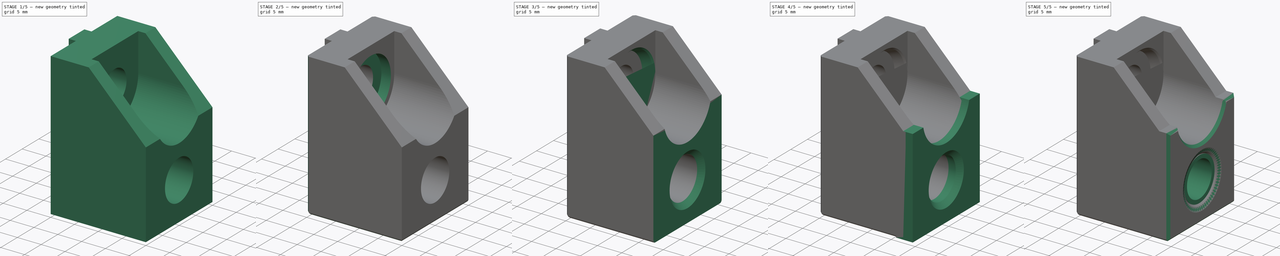
[diagram: build sequence overview — one tinted view per stage of 5, left to right]
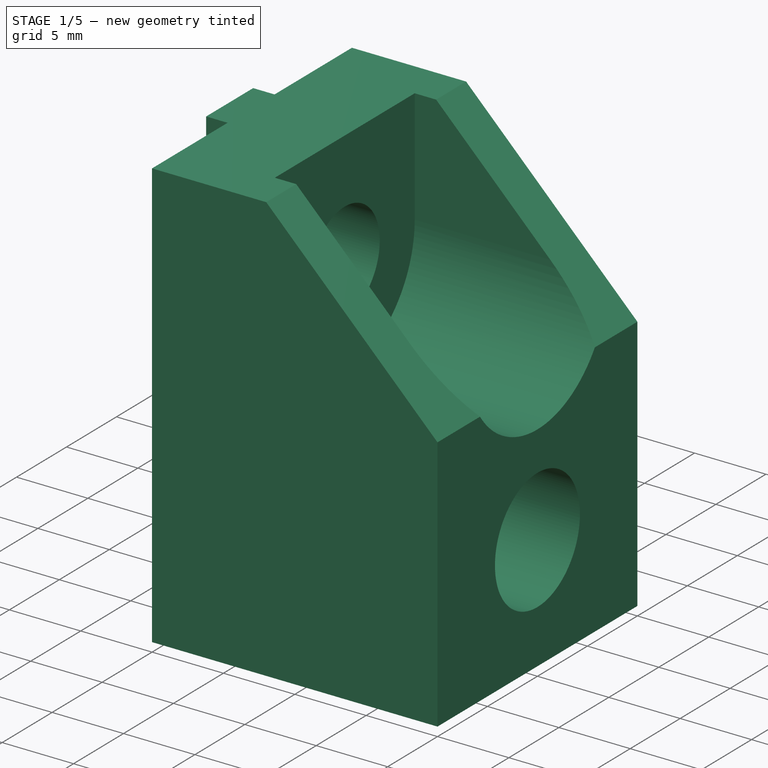
[diagram: stage 1 of 5 — iso view after this stage's code; geometry added in this stage tinted green]
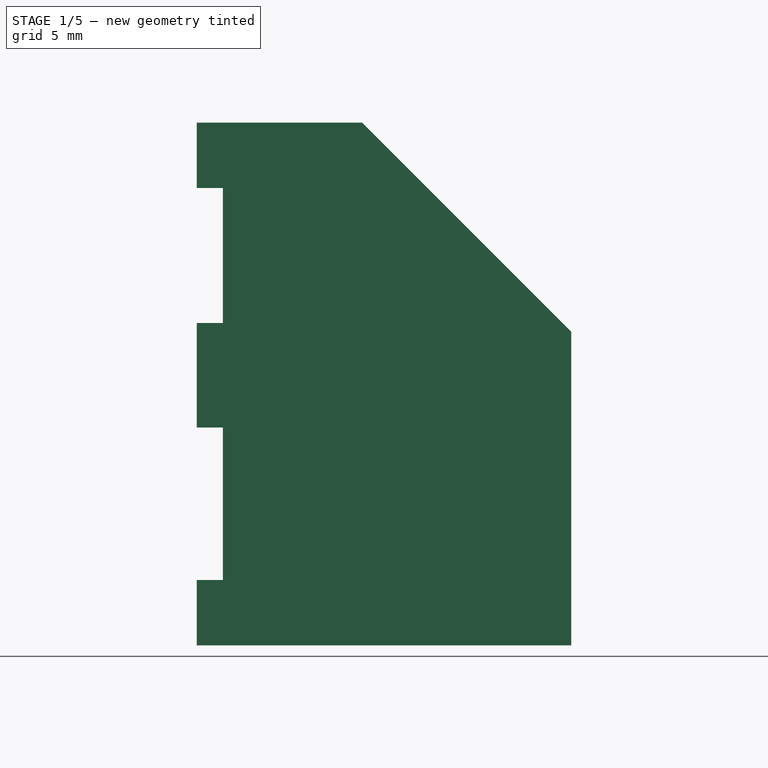
[diagram: stage 1 of 5 — front view after this stage's code; geometry added in this stage tinted green]
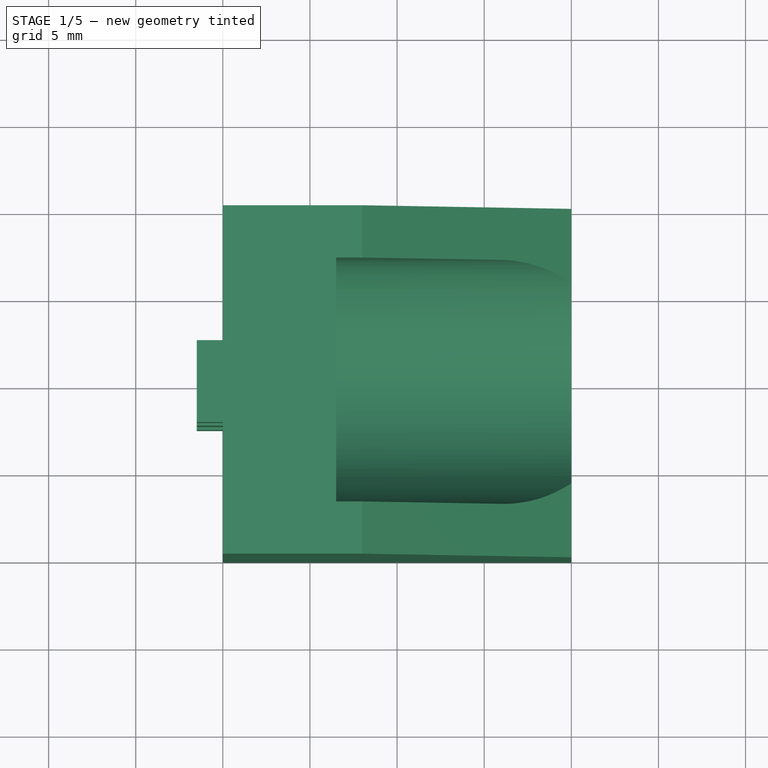
[diagram: stage 1 of 5 — top view after this stage's code; geometry added in this stage tinted green]
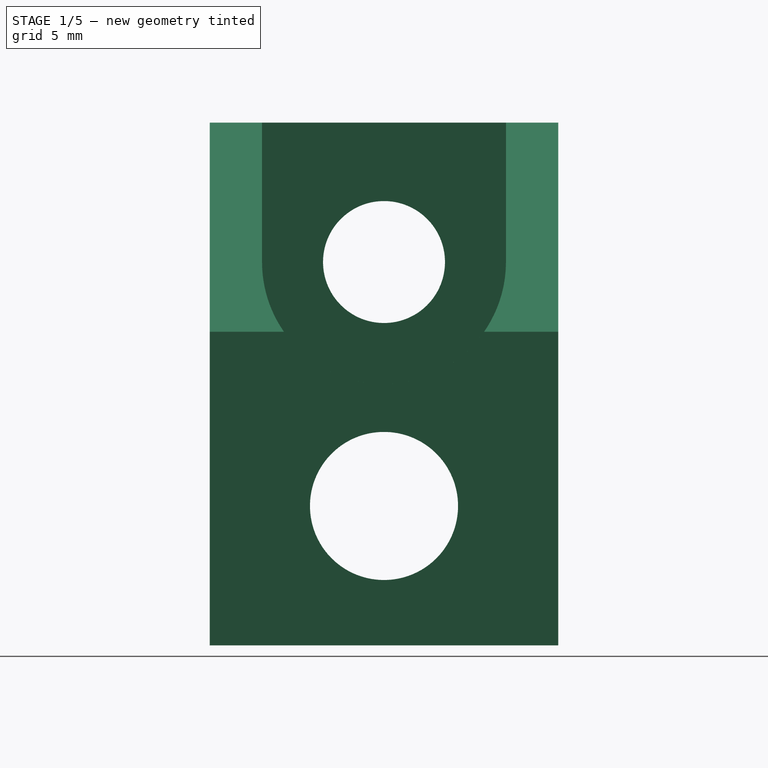
[diagram: stage 1 of 5 — right view after this stage's code; geometry added in this stage tinted green]
FCSTD DOCUMENT  (FreeCAD 0.16R5480 (Git))
Label: bed_mount_chassis_v3.3_A
License: All rights reserved
LicenseURL: http://en.wikipedia.org/wiki/All_rights_reserved
objects: Sketcher::SketchObject×12, PartDesign::Chamfer×8, PartDesign::Pocket×7, PartDesign::Pad×5, PartDesign::Fillet×4
note: 48 computed .brp shape members not serialized (recipe doc carries the construction recipe); baked Part::Feature solids carry a one-line shape summary decoded from their .brp

FEATURE [Sketcher::SketchObject] Sketch
  sketch-geometry (4):
    g0: LineSegment StartX=0 StartY=0 StartZ=0 EndX=20 EndY=0 EndZ=0
    g1: LineSegment StartX=20 StartY=0 StartZ=0 EndX=20 EndY=20 EndZ=0
    g2: LineSegment StartX=20 StartY=20 StartZ=0 EndX=0 EndY=20 EndZ=0
    g3: LineSegment StartX=0 StartY=20 StartZ=0 EndX=0 EndY=0 EndZ=0
  constraints (11):
    c: Coincident(g0,g1)
    c: Coincident(g1,g2)
    c: Coincident(g2,g3)
    c: Coincident(g3,g0)
    c: Horizontal(g0)
    c: Horizontal(g2)
    c: Vertical(g1)
    c: Vertical(g3)
    c: Coincident(g0,g-1)
    c: Equal(g3,g2)
    c: DistanceX(g2) = -20
FEATURE [PartDesign::Pad] Pad
  Length = 30
  Length2 = 100
  Sketch = -> Sketch
  Type = 0
FEATURE [Sketcher::SketchObject] Sketch001
  ExternalGeometry = -> [Pad]
  Placement = pos=(0,0,0) rot=(1,0,0;1.5708rad)
  Support = -> Pad [Face1]
  sketch-geometry (3):
    g0: LineSegment StartX=8 StartY=30 StartZ=0 EndX=20 EndY=18 EndZ=0
    g1: LineSegment StartX=20 StartY=18 StartZ=0 EndX=20 EndY=30 EndZ=0
    g2: LineSegment StartX=20 StartY=30 StartZ=0 EndX=8 EndY=30 EndZ=0
  constraints (8):
    c: PointOnObject(g0,g-3)
    c: PointOnObject(g0,g-4)
    c: Coincident(g0,g1)
    c: Coincident(g1,g-4)
    c: Coincident(g1,g2)
    c: Coincident(g2,g0)
    c: DistanceX(g0,g-3) = -8
    c: DistanceY(g0,g-4) = -18
FEATURE [PartDesign::Pocket] Pocket
  Length = 5
  Sketch = -> Sketch001
  Type = 1
FEATURE [Sketcher::SketchObject] Sketch002
  ExternalGeometry = -> [Pocket]
  Placement = pos=(20,0,0) rot=(0.57735,0.57735,0.57735;2.0944rad)
  Support = -> Pocket [Face3]
  sketch-geometry (4):
    g0: ArcOfCircle CenterX=10 CenterY=30 CenterZ=0 NormalX=0 NormalY=0 NormalZ=1 Radius=7 StartAngle=0 EndAngle=3.14159
    g1: ArcOfCircle CenterX=10 CenterY=22 CenterZ=0 NormalX=0 NormalY=0 NormalZ=1 Radius=7 StartAngle=3.14159 EndAngle=6.28319
    g2: LineSegment StartX=3 StartY=30 StartZ=0 EndX=3 EndY=22 EndZ=0
    g3: LineSegment StartX=17 StartY=30 StartZ=0 EndX=17 EndY=22 EndZ=0
  constraints (10):
    c: Tangent(g0,g3) = 1.5708
    c: Tangent(g0,g2) = -1.5708
    c: Tangent(g2,g1) = -1.5708
    c: Tangent(g3,g1) = 1.5708
    c: Vertical(g2)
    c: Equal(g0,g1)
    c: PointOnObject(g0,g-3)
    c: DistanceX(g0,g-3) = 3
    c: DistanceX(g0,g-3) = -3
    c: DistanceY(g1,g0) = 8
FEATURE [PartDesign::Pocket] Pocket001
  Length = 13.5
  Sketch = -> Sketch002
  Type = 0
FEATURE [Sketcher::SketchObject] Sketch003
  ExternalGeometry = -> [Pocket001]
  Placement = pos=(20,0,0) rot=(0.57735,0.57735,0.57735;2.0944rad)
  Support = -> Pocket001 [Face3]
  sketch-geometry (6):
    g0: Circle CenterX=10 CenterY=22 CenterZ=0 NormalX=0 NormalY=0 NormalZ=1 Radius=3.5
    g1: Circle CenterX=10 CenterY=8 CenterZ=0 NormalX=0 NormalY=0 NormalZ=1 Radius=4.25
    g2: LineSegment [constr] StartX=0 StartY=0 StartZ=0 EndX=10 EndY=8 EndZ=0
    g3: LineSegment [constr] StartX=10 StartY=8 StartZ=0 EndX=20 EndY=0 EndZ=0
    g4: LineSegment [constr] StartX=3 StartY=30 StartZ=0 EndX=10 EndY=22 EndZ=0
    g5: LineSegment [constr] StartX=10 StartY=22 StartZ=0 EndX=17 EndY=30 EndZ=0
  constraints (14):
    c: Coincident(g-1,g2)
    c: Coincident(g2,g1)
    c: Coincident(g2,g3)
    c: Coincident(g3,g-4)
    c: Coincident(g-3,g4)
    c: Coincident(g4,g0)
    c: Coincident(g4,g5)
    c: Coincident(g5,g-3)
    c: Equal(g5,g4)
    c: Equal(g3,g2)
    c: Radius(g1) = 4.25
    c: Radius(g0) = 3.5
    c: Coincident(g-5,g0)
    c: DistanceY(g1) = 8
FEATURE [PartDesign::Pocket] Pocket002
  Length = 5
  Sketch = -> Sketch003
  Type = 1
FEATURE [Sketcher::SketchObject] Sketch004
  ExternalGeometry = -> [Pocket002]
  Placement = pos=(0,0,0) rot=(0.57735,-0.57735,-0.57735;2.0944rad)
  Support = -> Pocket002 [Face6]
  sketch-geometry (12):
    g0: LineSegment StartX=-12.26 StartY=30 StartZ=0 EndX=-7.56 EndY=30 EndZ=0
    g1: LineSegment StartX=-7.56 StartY=30 StartZ=0 EndX=-7.56 EndY=26.25 EndZ=0
    g2: LineSegment StartX=-7.56 StartY=26.25 StartZ=0 EndX=-12.26 EndY=26.25 EndZ=0
    g3: LineSegment StartX=-12.26 StartY=26.25 StartZ=0 EndX=-12.26 EndY=30 EndZ=0
    g4: LineSegment StartX=-12.26 StartY=12.5 StartZ=0 EndX=-7.56 EndY=12.5 EndZ=0
    g5: LineSegment StartX=-7.56 StartY=12.5 StartZ=0 EndX=-7.56 EndY=18.5 EndZ=0
    g6: LineSegment StartX=-7.56 StartY=18.5 StartZ=0 EndX=-12.26 EndY=18.5 EndZ=0
    g7: LineSegment StartX=-12.26 StartY=18.5 StartZ=0 EndX=-12.26 EndY=12.5 EndZ=0
    g8: LineSegment StartX=-12.26 StartY=0 StartZ=0 EndX=-7.56 EndY=0 EndZ=0
    g9: LineSegment StartX=-7.56 StartY=0 StartZ=0 EndX=-7.56 EndY=3.75 EndZ=0
    g10: LineSegment StartX=-7.56 StartY=3.75 StartZ=0 EndX=-12.26 EndY=3.75 EndZ=0
    g11: LineSegment StartX=-12.26 StartY=3.75 StartZ=0 EndX=-12.26 EndY=0 EndZ=0
  constraints (36):
    c: Coincident(g0,g1)
    c: Coincident(g1,g2)
    c: Coincident(g2,g3)
    c: Coincident(g3,g0)
    c: Horizontal(g0)
    c: Horizontal(g2)
    c: Vertical(g1)
    c: Vertical(g3)
    c: PointOnObject(g0,g-3)
    c: Coincident(g4,g5)
    c: Coincident(g5,g6)
    c: Coincident(g6,g7)
    c: Coincident(g7,g4)
    c: Horizontal(g4)
    c: Horizontal(g6)
    c: Vertical(g5)
    c: Vertical(g7)
    c: Coincident(g8,g9)
    c: Coincident(g9,g10)
    c: Coincident(g10,g11)
    c: Coincident(g11,g8)
    c: Horizontal(g8)
    c: Horizontal(g10)
    c: Vertical(g9)
    c: Vertical(g11)
    c: Equal(g3,g11)
    c: DistanceY(g9) = 3.75
    c: PointOnObject(g8,g-1)
    c: PointOnObject(g4,g11)
    c: PointOnObject(g2,g11)
    c: PointOnObject(g4,g9)
    c: PointOnObject(g1,g9)
    c: DistanceX(g0,g0) = -4.7
    c: DistanceX(g-1,g8) = -7.56
    c: DistanceY(g-1,g4) = 12.5
    c: DistanceY(g5) = 6
FEATURE [PartDesign::Pad] Pad001
  Length = 1.5
  Length2 = 100
  Sketch = -> Sketch004
  Type = 0
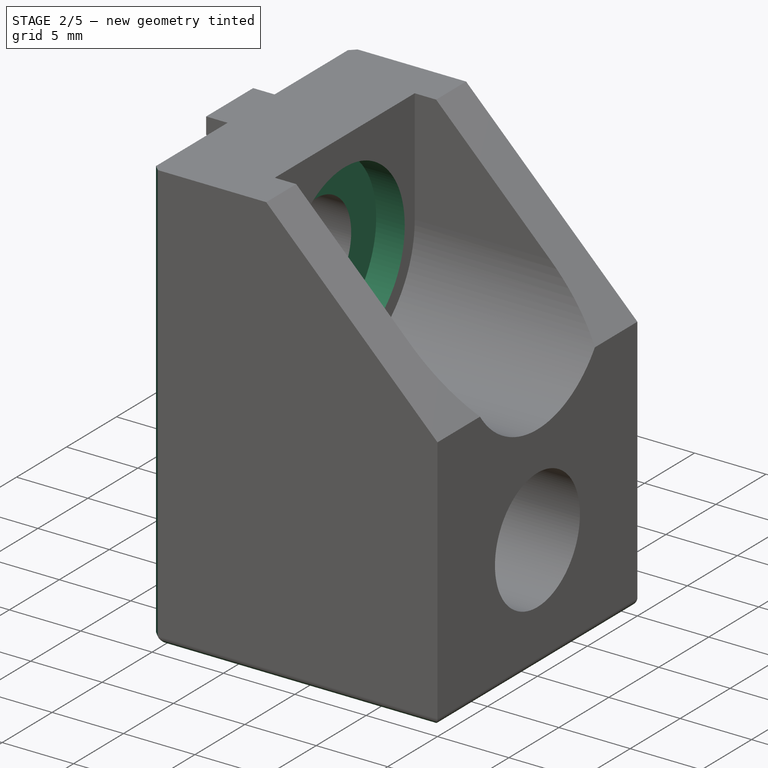
[diagram: stage 2 of 5 — iso view after this stage's code; geometry added in this stage tinted green]
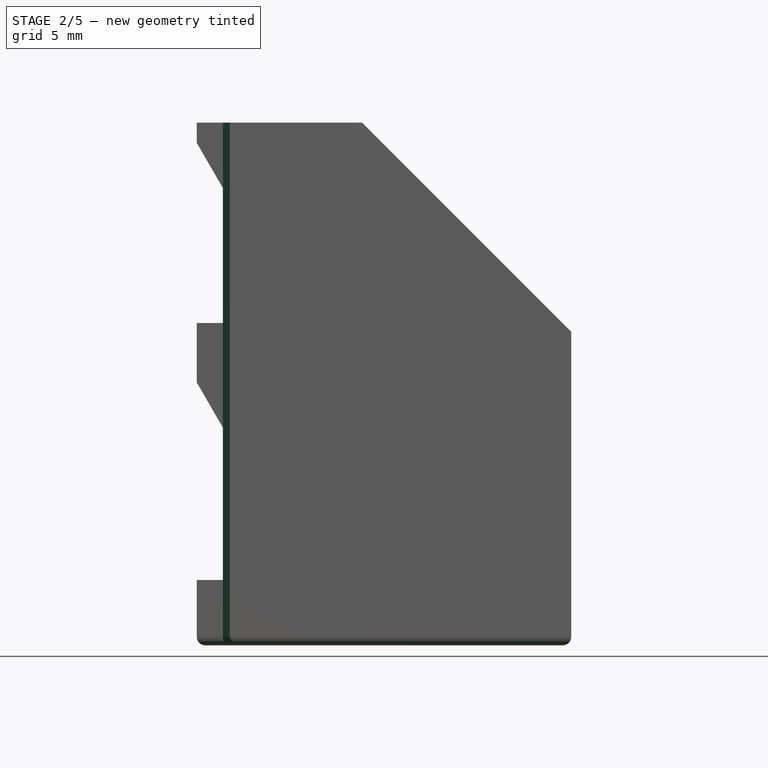
[diagram: stage 2 of 5 — front view after this stage's code; geometry added in this stage tinted green]
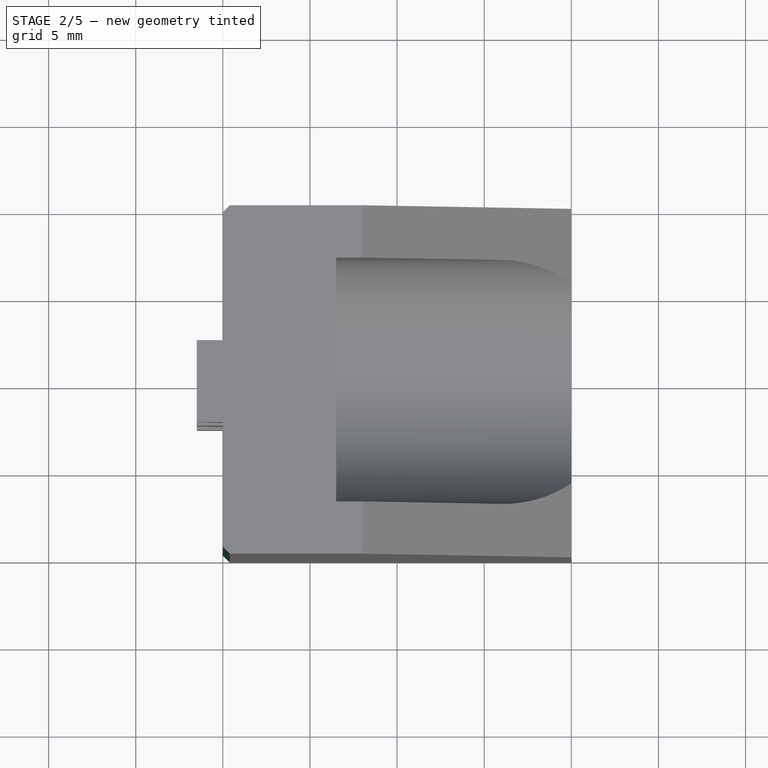
[diagram: stage 2 of 5 — top view after this stage's code; geometry added in this stage tinted green]
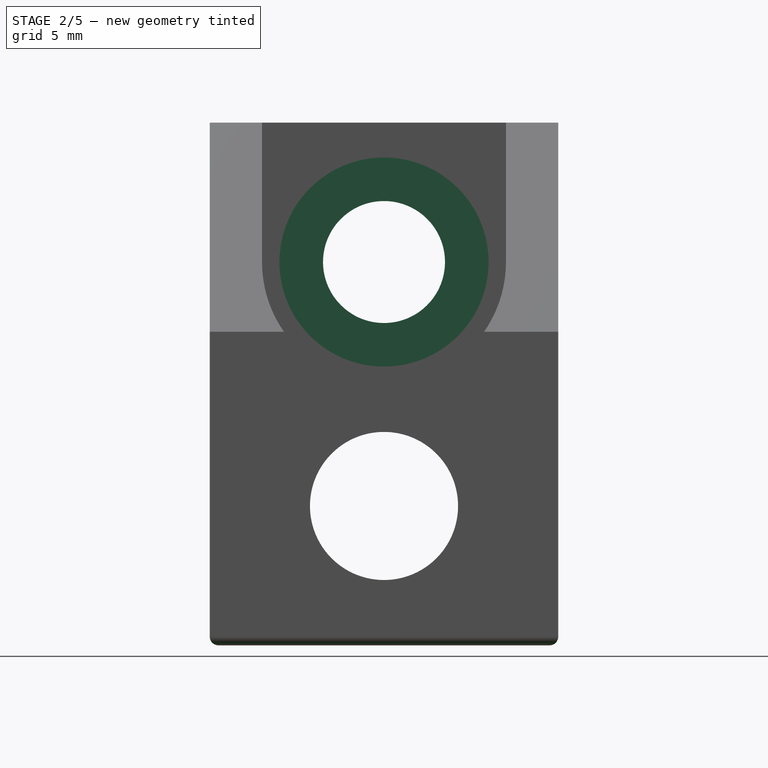
[diagram: stage 2 of 5 — right view after this stage's code; geometry added in this stage tinted green]
FEATURE [Sketcher::SketchObject] Sketch005
  ExternalGeometry = -> [Pad001]
  Placement = pos=(0,0,0) rot=(1,0,0;1.5708rad)
  Support = -> Pad001 [Face1]
  sketch-geometry (6):
    g0: LineSegment StartX=-1.5 StartY=15.0981 StartZ=0 EndX=0 EndY=12.5 EndZ=0
    g1: LineSegment StartX=0 StartY=12.5 StartZ=0 EndX=-1.5 EndY=12.5 EndZ=0
    g2: LineSegment StartX=-1.5 StartY=12.5 StartZ=0 EndX=-1.5 EndY=15.0981 EndZ=0
    g3: LineSegment StartX=0 StartY=26.25 StartZ=0 EndX=-1.5 EndY=28.8481 EndZ=0
    g4: LineSegment StartX=-1.5 StartY=28.8481 StartZ=0 EndX=-1.5 EndY=26.25 EndZ=0
    g5: LineSegment StartX=-1.5 StartY=26.25 StartZ=0 EndX=0 EndY=26.25 EndZ=0
  constraints (14):
    c: PointOnObject(g0,g-5)
    c: Coincident(g0,g-6)
    c: Coincident(g0,g1)
    c: Coincident(g1,g-6)
    c: Coincident(g1,g2)
    c: Coincident(g2,g0)
    c: Coincident(g-4,g3)
    c: PointOnObject(g3,g-3)
    c: Coincident(g3,g4)
    c: Coincident(g4,g-4)
    c: Coincident(g4,g5)
    c: Coincident(g5,g3)
    c: Angle(g-3,g3) = 0.523599
    c: Parallel(g3,g0)
FEATURE [PartDesign::Pocket] Pocket003
  Length = 5
  Sketch = -> Sketch005
  Type = 1
FEATURE [PartDesign::Fillet] Fillet
  Base = -> Pocket003 [Edge1,Edge8,Edge9,Edge10,Edge11,Edge12]
  Radius = 0.5
FEATURE [PartDesign::Fillet] Fillet001
  Base = -> Fillet [Edge98,Edge66,Edge55]
  Radius = 0.5
FEATURE [PartDesign::Chamfer] Chamfer
  Base = -> Fillet001 [Edge38,Edge44]
  Size = 0.4
FEATURE [Sketcher::SketchObject] Sketch006
  ExternalGeometry = -> [Chamfer]
  Placement = pos=(6.5,0,0) rot=(0.57735,0.57735,0.57735;2.0944rad)
  Support = -> Chamfer [Face47]
  sketch-geometry (1):
    g0: Circle CenterX=10 CenterY=22 CenterZ=0 NormalX=0 NormalY=0 NormalZ=1 Radius=6
  constraints (2):
    c: Coincident(g0,g-3)
    c: Radius(g0) = 6
FEATURE [PartDesign::Pocket] Pocket004
  Length = 2
  Sketch = -> Sketch006
  Type = 0
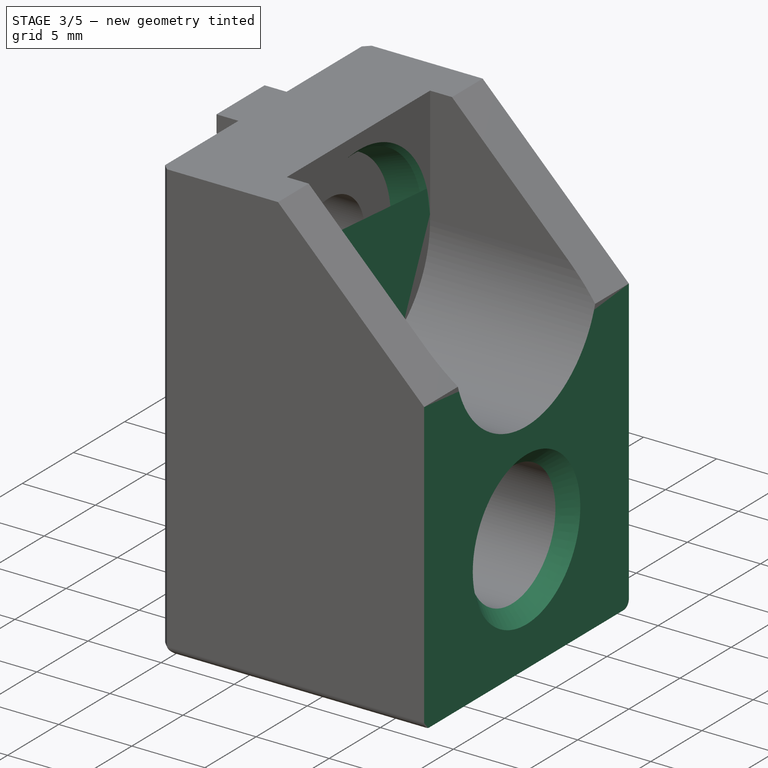
[diagram: stage 3 of 5 — iso view after this stage's code; geometry added in this stage tinted green]
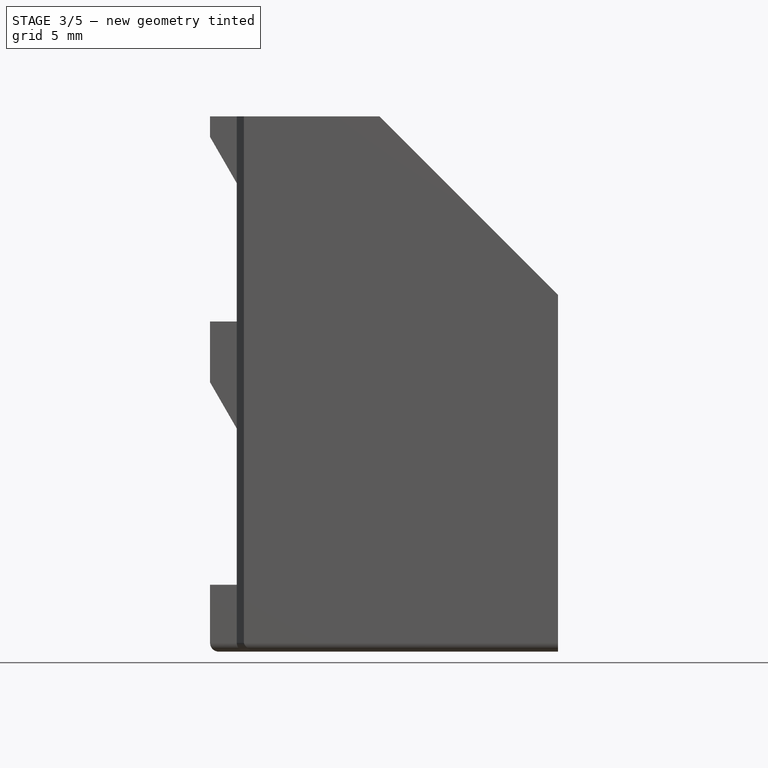
[diagram: stage 3 of 5 — front view after this stage's code; geometry added in this stage tinted green]
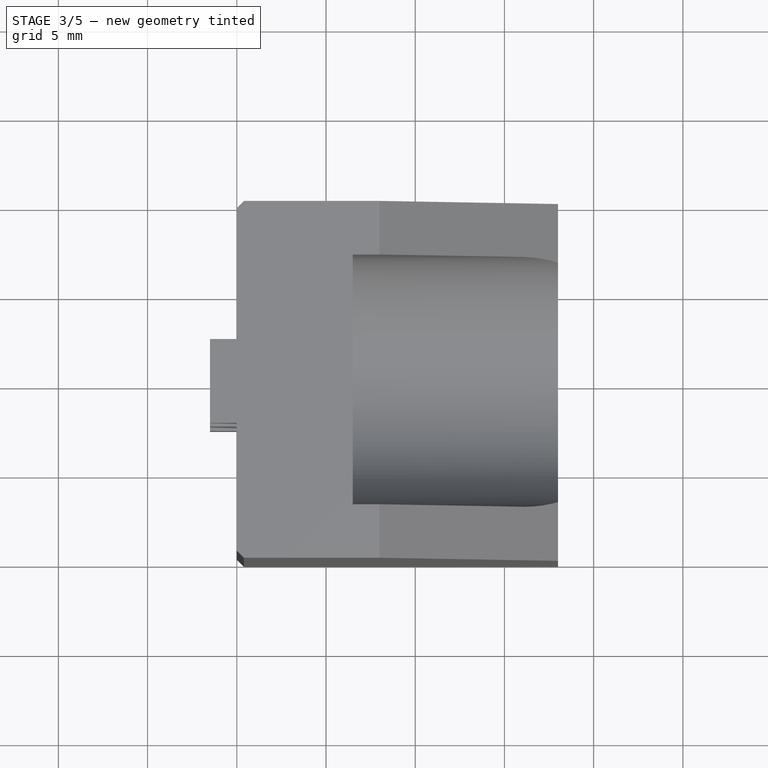
[diagram: stage 3 of 5 — top view after this stage's code; geometry added in this stage tinted green]
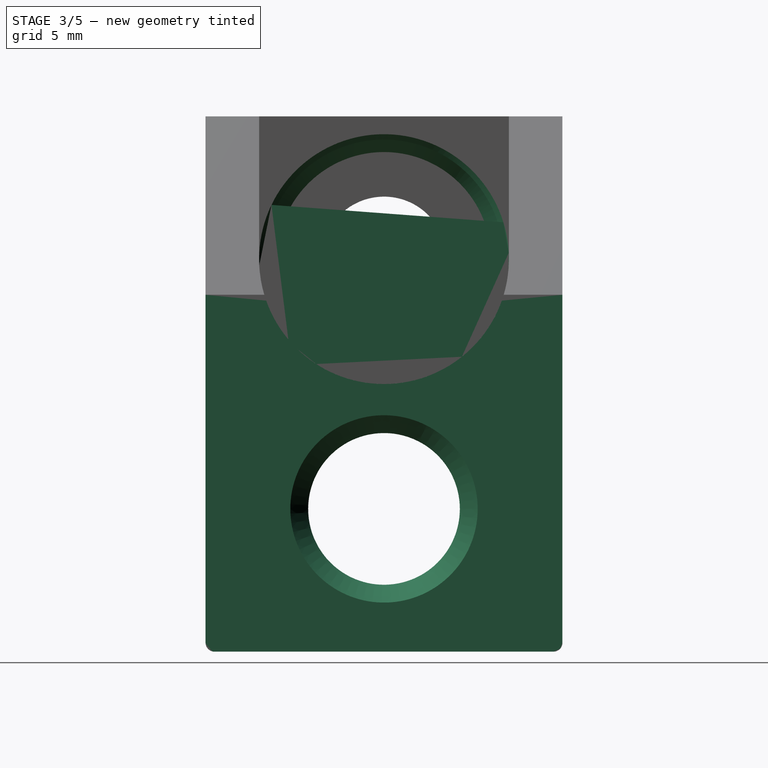
[diagram: stage 3 of 5 — right view after this stage's code; geometry added in this stage tinted green]
FEATURE [PartDesign::Chamfer] Chamfer001
  Base = -> Pocket004 [Edge134]
  Size = 1
FEATURE [PartDesign::Chamfer] Chamfer002
  Base = -> Chamfer001 [Edge7]
  Size = 0.99
FEATURE [Sketcher::SketchObject] Sketch007
  Placement = pos=(20,0,0) rot=(0.57735,0.57735,0.57735;2.0944rad)
  Support = -> Chamfer002 [Face19]
  sketch-geometry (4):
    g0: LineSegment StartX=0 StartY=0 StartZ=0 EndX=21 EndY=0 EndZ=0
    g1: LineSegment StartX=21 StartY=0 StartZ=0 EndX=21 EndY=30 EndZ=0
    g2: LineSegment StartX=21 StartY=30 StartZ=0 EndX=0 EndY=30 EndZ=0
    g3: LineSegment StartX=0 StartY=30 StartZ=0 EndX=0 EndY=0 EndZ=0
  constraints (11):
    c: Coincident(g0,g1)
    c: Coincident(g1,g2)
    c: Coincident(g2,g3)
    c: Coincident(g3,g0)
    c: Horizontal(g0)
    c: Horizontal(g2)
    c: Vertical(g1)
    c: Vertical(g3)
    c: Coincident(g0,g-1)
    c: DistanceX(g2) = -21
    c: DistanceY(g1) = 30
FEATURE [PartDesign::Pocket] Pocket005
  Length = 2
  Sketch = -> Sketch007
  Type = 0
FEATURE [PartDesign::Chamfer] Chamfer003
  Base = -> Pocket005 [Edge59]
  Size = 1
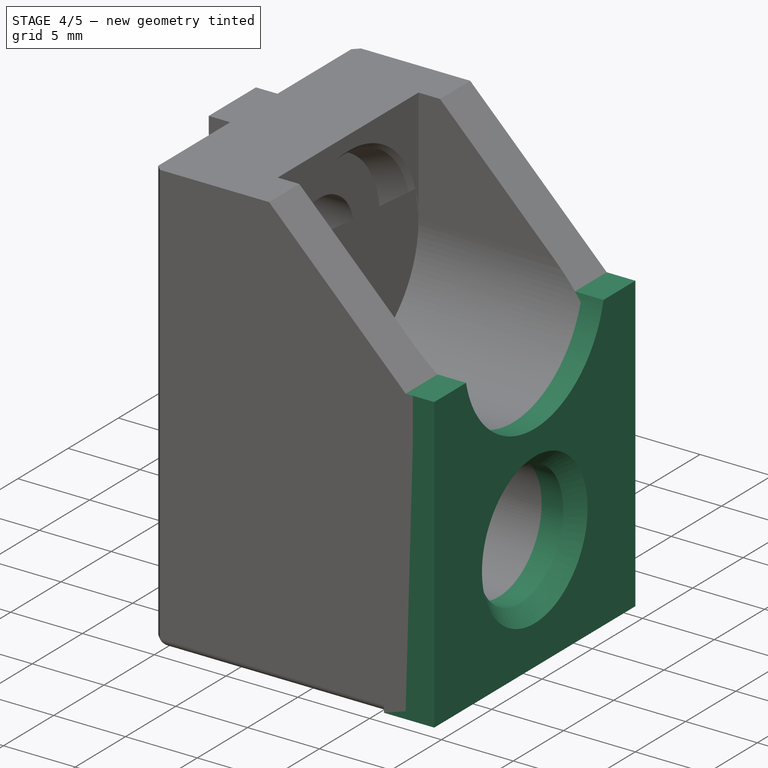
[diagram: stage 4 of 5 — iso view after this stage's code; geometry added in this stage tinted green]
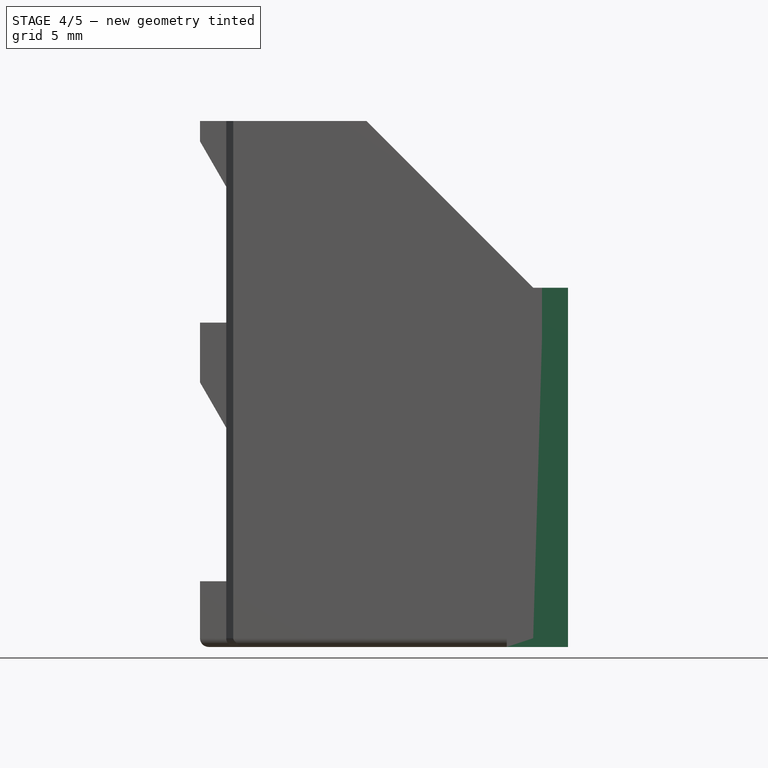
[diagram: stage 4 of 5 — front view after this stage's code; geometry added in this stage tinted green]
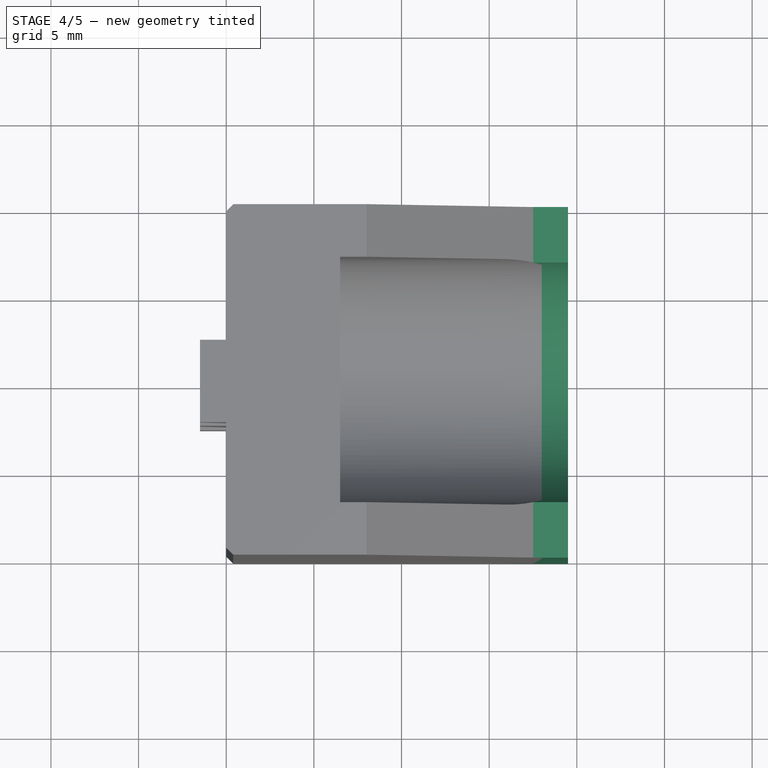
[diagram: stage 4 of 5 — top view after this stage's code; geometry added in this stage tinted green]
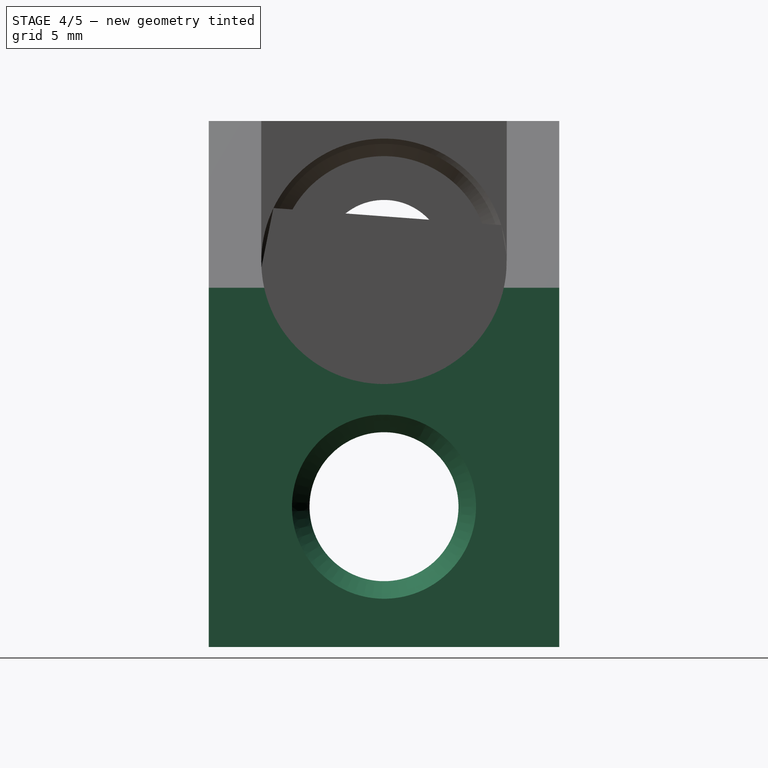
[diagram: stage 4 of 5 — right view after this stage's code; geometry added in this stage tinted green]
FEATURE [PartDesign::Chamfer] Chamfer004
  Base = -> Chamfer003 [Edge8,Edge2,Edge4]
  Size = 0.49
FEATURE [Sketcher::SketchObject] Sketch008
  ExternalGeometry = -> [Chamfer004]
  Placement = pos=(18,0,0) rot=(0.57735,0.57735,0.57735;2.0944rad)
  Support = -> Chamfer004 [Face1]
  sketch-geometry (8):
    g0: LineSegment StartX=0 StartY=20.49 StartZ=0 EndX=3 EndY=20.49 EndZ=0
    g1: LineSegment StartX=3 StartY=20.49 StartZ=0 EndX=3 EndY=17.49 EndZ=0
    g2: LineSegment StartX=3 StartY=17.49 StartZ=0 EndX=0 EndY=17.49 EndZ=0
    g3: LineSegment StartX=0 StartY=17.49 StartZ=0 EndX=0 EndY=20.49 EndZ=0
    g4: LineSegment StartX=20 StartY=20.49 StartZ=0 EndX=17 EndY=20.49 EndZ=0
    g5: LineSegment StartX=17 StartY=20.49 StartZ=0 EndX=17 EndY=17.49 EndZ=0
    g6: LineSegment StartX=17 StartY=17.49 StartZ=0 EndX=20 EndY=17.49 EndZ=0
    g7: LineSegment StartX=20 StartY=17.49 StartZ=0 EndX=20 EndY=20.49 EndZ=0
  constraints (22):
    c: Coincident(g0,g1)
    c: Coincident(g1,g2)
    c: Coincident(g2,g3)
    c: Coincident(g3,g0)
    c: Horizontal(g0)
    c: Horizontal(g2)
    c: Vertical(g1)
    c: Vertical(g3)
    c: Coincident(g0,g-3)
    c: Coincident(g4,g5)
    c: Coincident(g5,g6)
    c: Coincident(g6,g7)
    c: Coincident(g7,g4)
    c: Horizontal(g4)
    c: Horizontal(g6)
    c: Vertical(g5)
    c: Vertical(g7)
    c: Coincident(g4,g-4)
    c: Equal(g4,g0)
    c: Equal(g3,g7)
    c: DistanceX(g0) = 3
    c: Equal(g3,g0)
FEATURE [PartDesign::Pad] Pad002
  Length = 0.5
  Length2 = 1
  Sketch = -> Sketch008
  Type = 4
FEATURE [PartDesign::Fillet] Fillet002
  Base = -> Pad002 [Edge76,Edge36,Edge40,Edge85,Edge58,Edge54,Edge52,Edge103]
  Radius = 0.49
FEATURE [Sketcher::SketchObject] Sketch009
  ExternalGeometry = -> [Fillet002]
  Placement = pos=(18,0,0) rot=(0.57735,0.57735,0.57735;2.0944rad)
  Support = -> Fillet002 [Face4]
  sketch-geometry (8):
    g0: LineSegment StartX=0 StartY=0 StartZ=0 EndX=20 EndY=0 EndZ=0
    g1: LineSegment StartX=20 StartY=0 StartZ=0 EndX=20 EndY=20.49 EndZ=0
    g2: LineSegment [constr] StartX=20 StartY=20.49 StartZ=0 EndX=0 EndY=20.49 EndZ=0
    g3: LineSegment StartX=0 StartY=20.49 StartZ=0 EndX=0 EndY=0 EndZ=0
    g4: ArcOfCircle CenterX=10 CenterY=22 CenterZ=0 NormalX=0 NormalY=0 NormalZ=1 Radius=7 StartAngle=3.35902 EndAngle=6.06576
    g5: LineSegment StartX=16.8352 StartY=20.49 StartZ=0 EndX=20 EndY=20.49 EndZ=0
    g6: LineSegment StartX=3.1648 StartY=20.49 StartZ=0 EndX=0 EndY=20.49 EndZ=0
    g7: Circle CenterX=10 CenterY=8 CenterZ=0 NormalX=0 NormalY=0 NormalZ=1 Radius=4.25
  constraints (20):
    c: Coincident(g0,g1)
    c: Coincident(g1,g2)
    c: Coincident(g2,g3)
    c: Coincident(g3,g0)
    c: Horizontal(g0)
    c: Horizontal(g2)
    c: Vertical(g1)
    c: Vertical(g3)
    c: Coincident(g0,g-1)
    c: Coincident(g1,g-3)
    c: Coincident(g4,g-5)
    c: PointOnObject(g4,g2)
    c: PointOnObject(g4,g2)
    c: Equal(g-5,g4)
    c: Coincident(g5,g4)
    c: Coincident(g5,g1)
    c: Coincident(g6,g4)
    c: Coincident(g6,g2)
    c: Coincident(g7,g-4)
    c: Equal(g7,g-4)
FEATURE [PartDesign::Pad] Pad003
  Length = 1.5
  Length2 = 2
  Sketch = -> Sketch009
  Type = 4
FEATURE [PartDesign::Chamfer] Chamfer005
  Base = -> Pad003 [Edge7]
  Size = 1
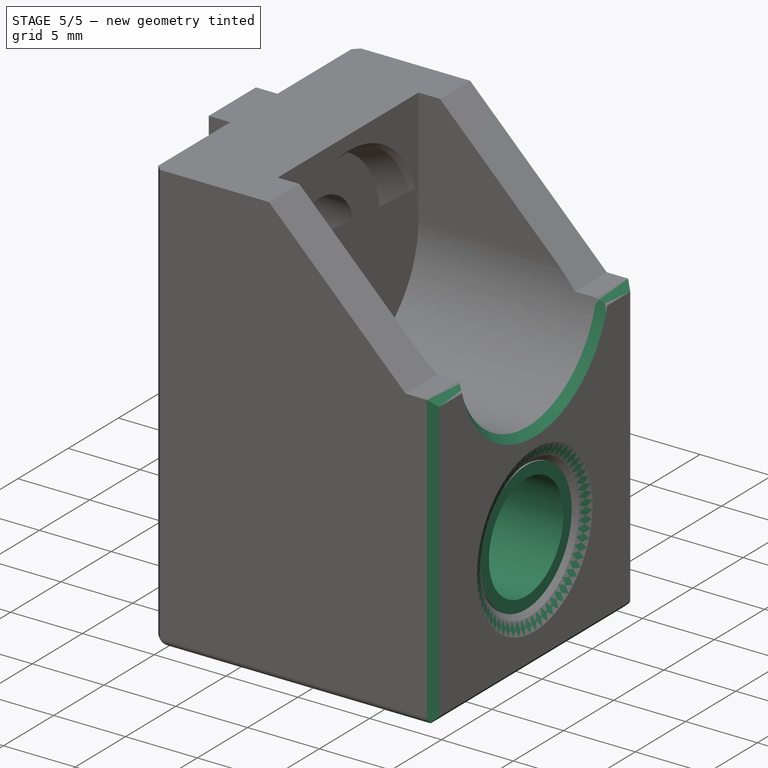
[diagram: stage 5 of 5 — iso view after this stage's code; geometry added in this stage tinted green]
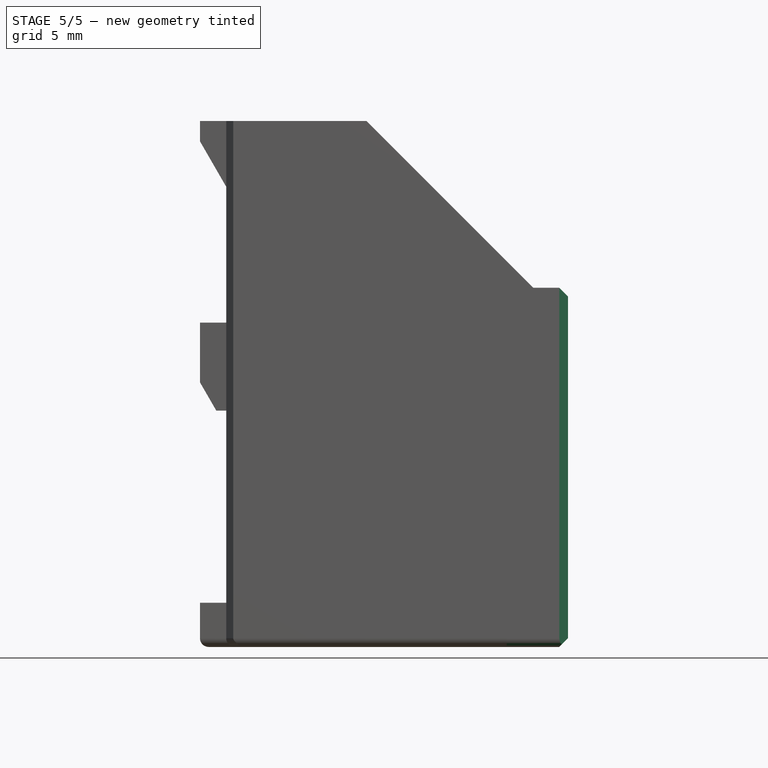
[diagram: stage 5 of 5 — front view after this stage's code; geometry added in this stage tinted green]
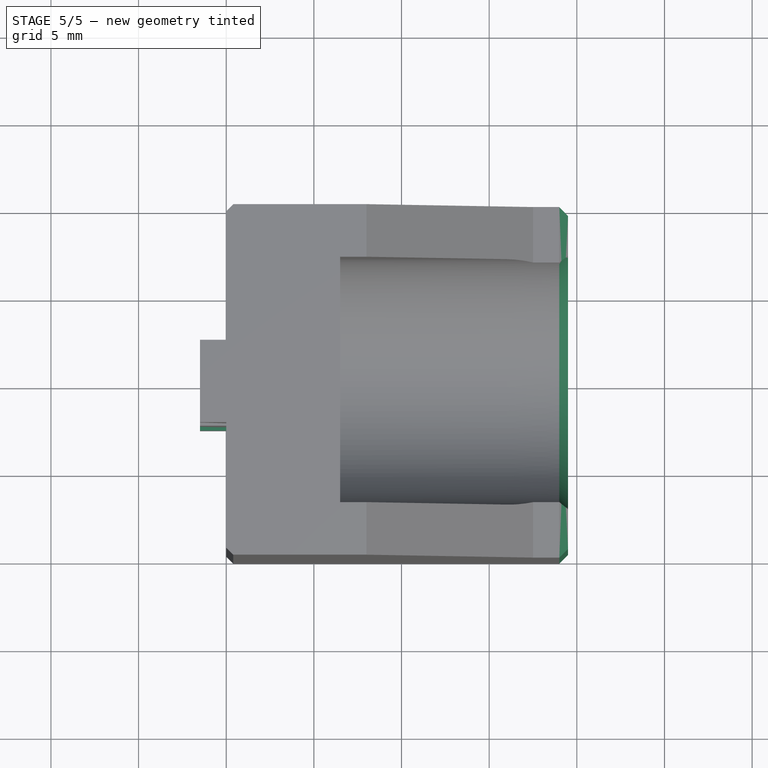
[diagram: stage 5 of 5 — top view after this stage's code; geometry added in this stage tinted green]
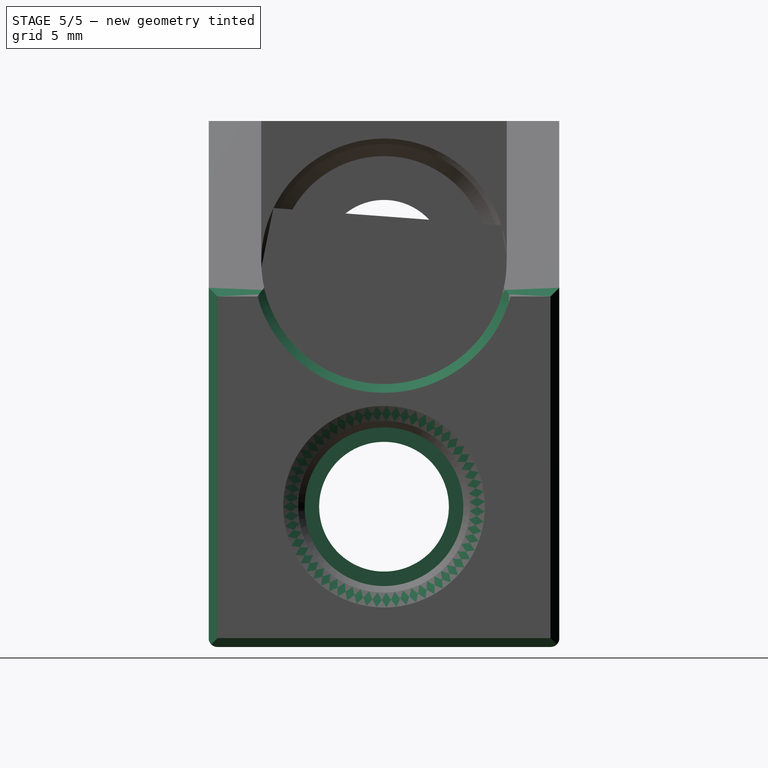
[diagram: stage 5 of 5 — right view after this stage's code; geometry added in this stage tinted green]
FEATURE [PartDesign::Chamfer] Chamfer006
  Base = -> Chamfer005 [Edge1,Edge2,Edge3,Edge4,Edge5,Edge6,Edge7]
  Size = 0.5
FEATURE [Sketcher::SketchObject] Sketch010
  ExternalGeometry = -> [Chamfer006]
  Placement = pos=(-1.5,0,0) rot=(0.57735,-0.57735,-0.57735;2.0944rad)
  Support = -> Chamfer006 [Face80]
  sketch-geometry (1):
    g0: Circle CenterX=-10 CenterY=8 CenterZ=0 NormalX=0 NormalY=0 NormalZ=1 Radius=6
  constraints (2):
    c: Coincident(g0,g-3)
    c: Radius(g0) = 6
FEATURE [PartDesign::Pocket] Pocket006
  Length = 8.4
  Sketch = -> Sketch010
  Type = 0
FEATURE [PartDesign::Fillet] Fillet003
  Base = -> Pocket006 [Edge43,Edge33]
  Radius = 0.49
FEATURE [PartDesign::Chamfer] Chamfer007
  Base = -> Fillet003 [Edge204]
  Size = 1.4
FEATURE [Sketcher::SketchObject] Sketch011
  ExternalGeometry = -> [Chamfer007]
  Placement = pos=(6.9,0,0) rot=(0.57735,-0.57735,-0.57735;2.0944rad)
  Support = -> Chamfer007 [Face12]
  sketch-geometry (2):
    g0: Circle CenterX=-10 CenterY=8 CenterZ=0 NormalX=0 NormalY=0 NormalZ=1 Radius=3.7
    g1: Circle CenterX=-10 CenterY=8 CenterZ=0 NormalX=0 NormalY=0 NormalZ=1 Radius=4.52535
  constraints (4):
    c: Coincident(g0,g-3)
    c: Coincident(g1,g0)
    c: Radius(g1) = 4.52535
    c: Radius(g0) = 3.7
FEATURE [PartDesign::Pad] Pad004
  Length = 12
  Length2 = 100
  Reversed = true
  Sketch = -> Sketch011
  Type = 0
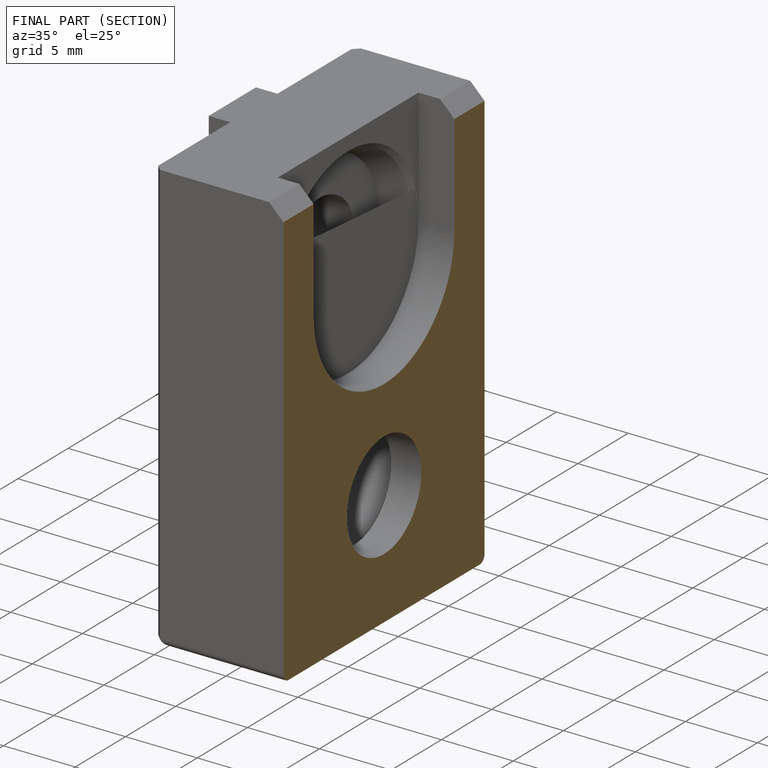
[diagram: finished part — half-section view (interior)]
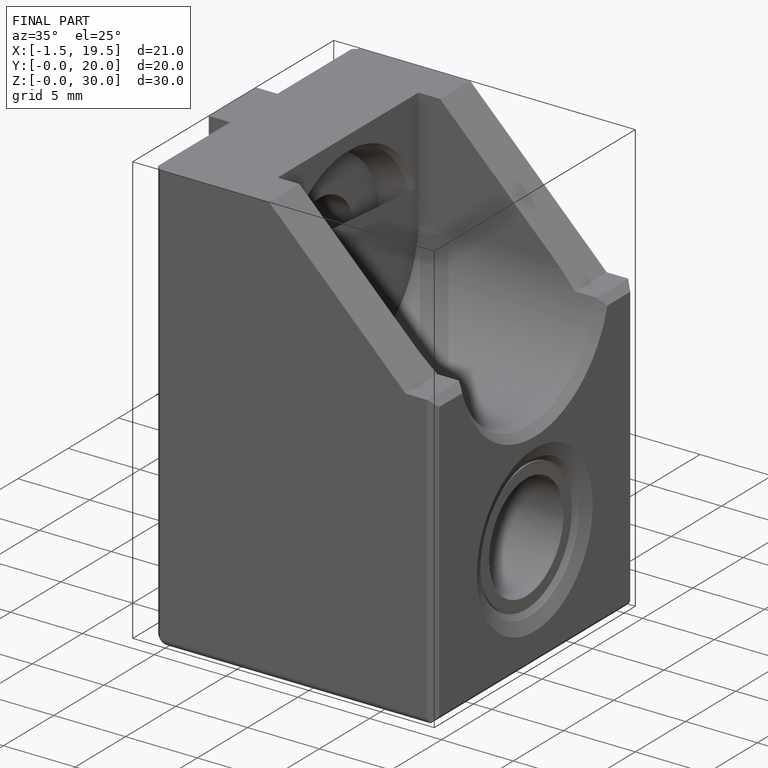
[diagram: finished part — iso view with bounding-box wireframe]
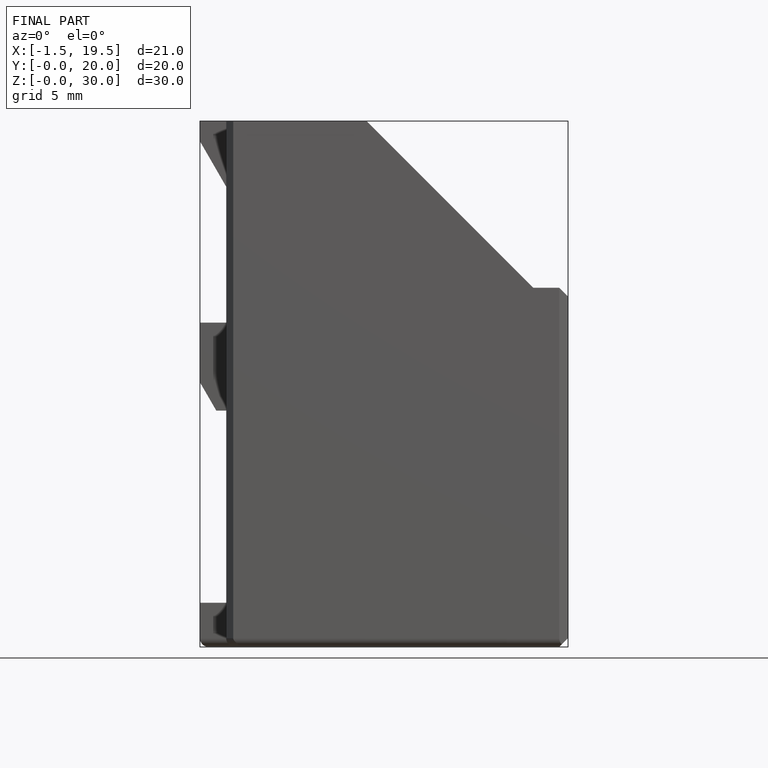
[diagram: finished part — front view with bounding-box wireframe]
